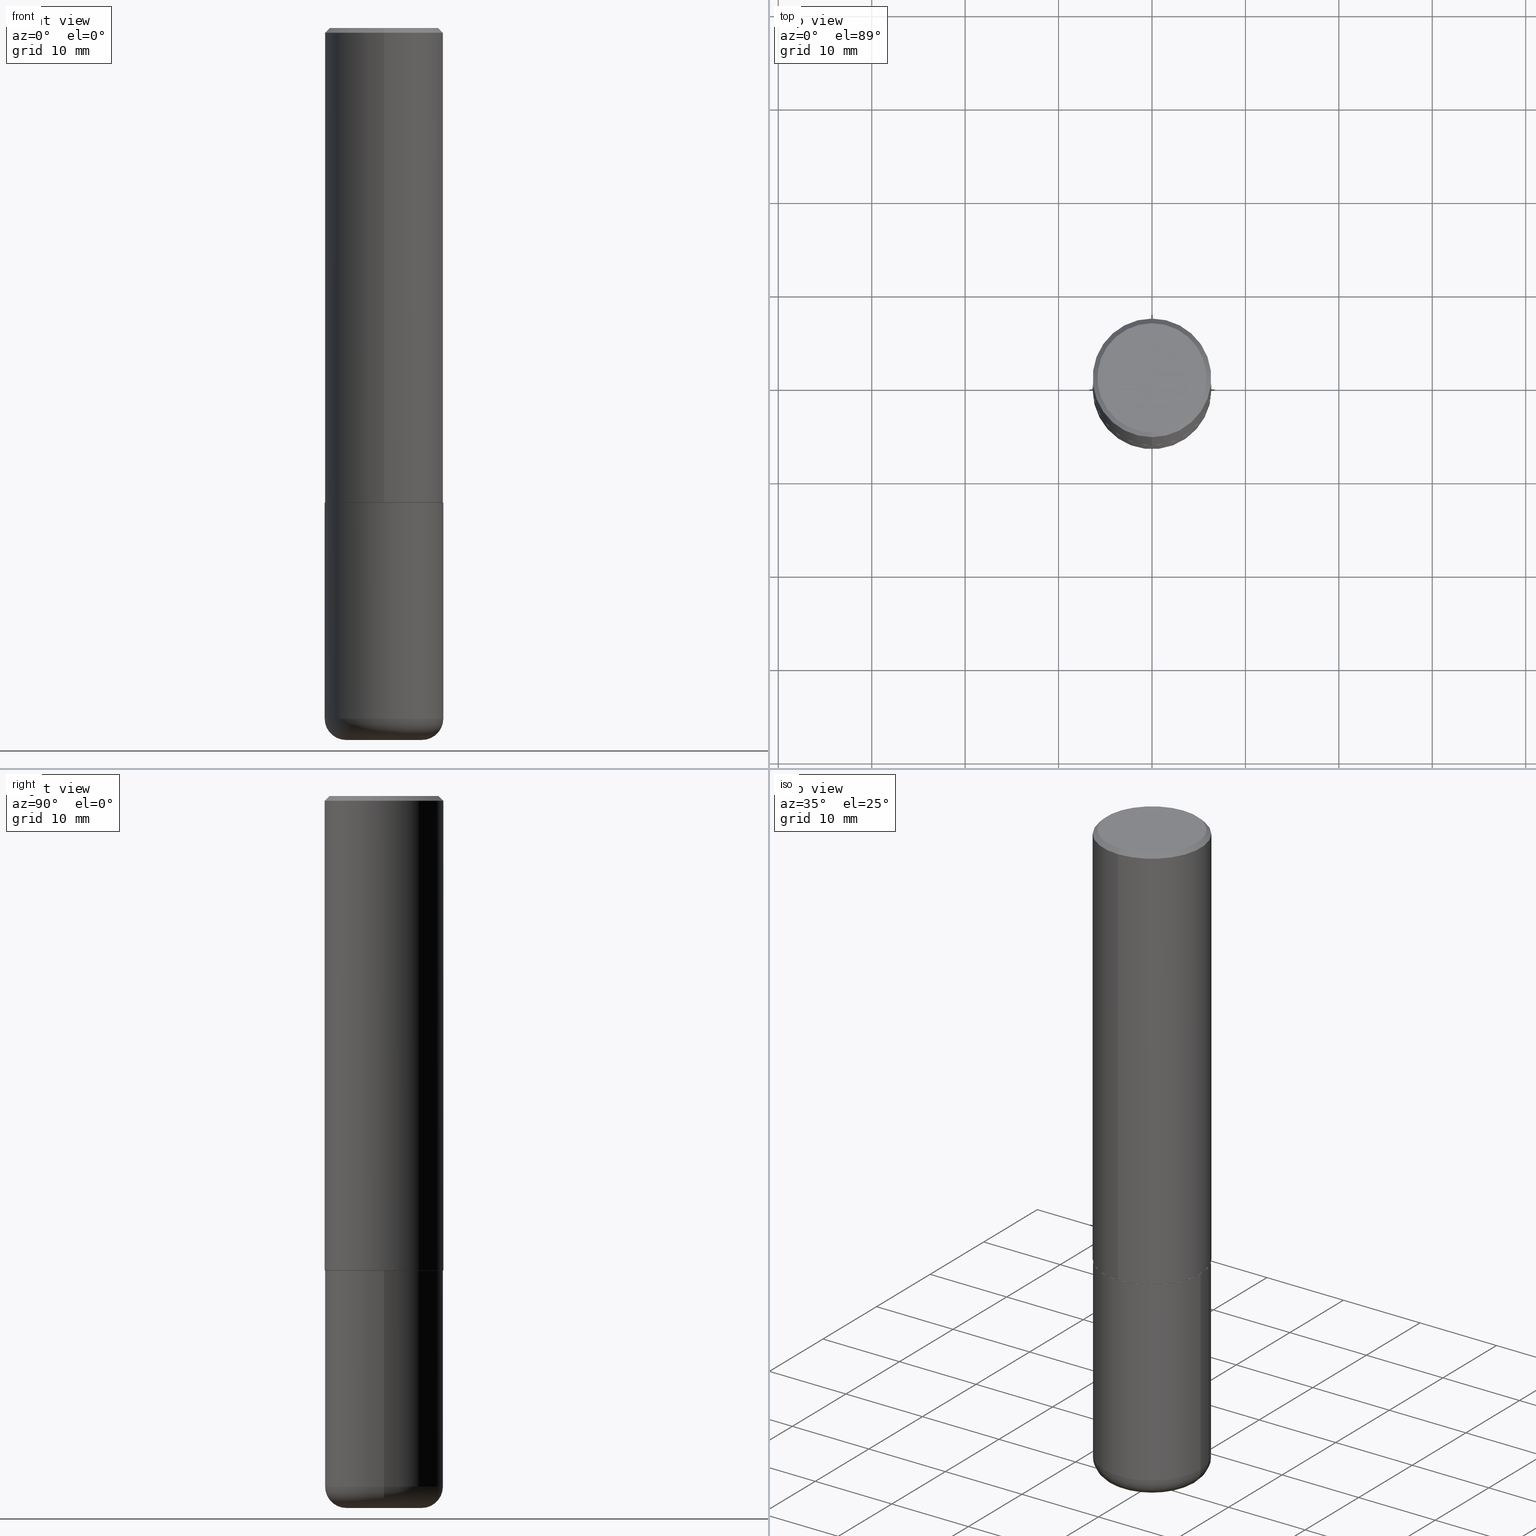
[diagram: canonical four-view strip — front | top / right | iso, engineering-drawing reading convention]
A machine part, canonical four-view strip (front | top / right | iso — engineering-drawing reading convention). The complete STEP part file that produces these views, byte-faithful:
ISO-10303-21;
HEADER;
FILE_DESCRIPTION (( 'STEP AP203' ),
    '1' );
FILE_NAME ('36707.STEP',
    '2024-03-01T17:23:09',
    ( '' ),
    ( '' ),
    'SwSTEP 2.0',
    'SolidWorks 2023',
    '' );
FILE_SCHEMA (( 'CONFIG_CONTROL_DESIGN' ));
ENDSEC;

DATA;
#1 = AXIS2_PLACEMENT_3D ( 'NONE', #129, #260, #95 ) ;
#2 = CARTESIAN_POINT ( 'NONE',  ( 0.000000000000000000, 0.000000000000000000, 0.000000000000000000 ) ) ;
#3 = FACE_OUTER_BOUND ( 'NONE', #269, .T. ) ;
#4 = CARTESIAN_POINT ( 'NONE',  ( -6.999288131327388275E-45, 1.000177822699752408E-30, 2.863382567778991632E-16 ) ) ;
#5 = VERTEX_POINT ( 'NONE', #296 ) ;
#6 = CARTESIAN_POINT ( 'NONE',  ( 7.336406418555409790E-29, -1.047444401652943635E-14, -3.000000000000000444 ) ) ;
#7 = EDGE_CURVE ( 'NONE', #244, #306, #113, .T. ) ;
#8 = CARTESIAN_POINT ( 'NONE',  ( 7.116314225998749245E-29, -1.016021069603355467E-14, -2.910000000000000586 ) ) ;
#9 = ADVANCED_FACE ( 'NONE', ( #3 ), #122, .F. ) ;
#10 = ORIENTED_EDGE ( 'NONE', *, *, #207, .T. ) ;
#11 = CARTESIAN_POINT ( 'NONE',  ( 1.606081415867839095E-15, 0.2299999999999997047, -6.602194994861444855E-16 ) ) ;
#12 = ORIENTED_EDGE ( 'NONE', *, *, #275, .F. ) ;
#13 = DIRECTION ( 'NONE',  ( -2.444412496635560889E-29, 3.492994034239543658E-15, 1.000000000000000000 ) ) ;
#14 = CIRCLE ( 'NONE', #246, 0.2500000000000000000 ) ;
#15 = DATE_AND_TIME ( #281, #188 ) ;
#16 = CARTESIAN_POINT ( 'NONE',  ( 7.116314225998749245E-29, -1.016021069603355467E-14, -2.910000000000000586 ) ) ;
#17 = PERSON_AND_ORGANIZATION ( #49, #137 ) ;
#18 = TOROIDAL_SURFACE ( 'NONE', #380, 0.1600000000000000033, 0.08999999999999994116 ) ;
#19 = APPROVAL_PERSON_ORGANIZATION ( #17, #278, #245 ) ;
#20 = CC_DESIGN_DATE_AND_TIME_ASSIGNMENT ( #310, #371, ( #351 ) ) ;
#21 = COORDINATED_UNIVERSAL_TIME_OFFSET ( 5, 0, .BEHIND. ) ;
#22 = EDGE_CURVE ( 'NONE', #223, #192, #194, .T. ) ;
#23 = CONICAL_SURFACE ( 'NONE', #349, 0.2500000000000000000, 0.7853981633974472798 ) ;
#24 = FACE_OUTER_BOUND ( 'NONE', #165, .T. ) ;
#25 = DIRECTION ( 'NONE',  ( -2.444412496635560889E-29, 3.492994034239543658E-15, 1.000000000000000000 ) ) ;
#26 = ORIENTED_EDGE ( 'NONE', *, *, #7, .T. ) ;
#27 = CARTESIAN_POINT ( 'NONE',  ( 0.000000000000000000, 0.000000000000000000, 0.000000000000000000 ) ) ;
#28 = ORIENTED_EDGE ( 'NONE', *, *, #248, .T. ) ;
#29 = VECTOR ( 'NONE', #163, 39.37007874015748143 ) ;
#30 = CC_DESIGN_PERSON_AND_ORGANIZATION_ASSIGNMENT ( #387, #412, ( #120 ) ) ;
#31 = DIRECTION ( 'NONE',  ( -6.982962677686266711E-15, -1.000000000000000000, 3.491481338843145583E-15 ) ) ;
#32 = CARTESIAN_POINT ( 'NONE',  ( -1.715124499442882299E-15, -0.2500000000000000555, -0.01999999999999918163 ) ) ;
#33 = CARTESIAN_POINT ( 'NONE',  ( 4.888824993271135161E-31, -6.985988068479105855E-17, -0.02000000000000005593 ) ) ;
#34 = FACE_OUTER_BOUND ( 'NONE', #413, .T. ) ;
#35 = PRODUCT_DEFINITION_SHAPE ( 'NONE', 'NONE',  #351 ) ;
#36 = LINE ( 'NONE', #302, #264 ) ;
#37 = AXIS2_PLACEMENT_3D ( 'NONE', #93, #225, #356 ) ;
#38 = DIRECTION ( 'NONE',  ( -1.000000000000000000, 6.982962677686265922E-15, -4.876176775795935793E-29 ) ) ;
#39 = EDGE_LOOP ( 'NONE', ( #169, #347, #247, #69 ) ) ;
#40 = CARTESIAN_POINT ( 'NONE',  ( 4.888824993271122339E-29, -6.985988068479088105E-15, -2.000000000000000444 ) ) ;
#41 = APPLICATION_CONTEXT ( 'configuration controlled 3d designs of mechanical parts and assemblies' ) ;
#42 = APPROVAL ( #341, 'UNSPECIFIED' ) ;
#43 = VECTOR ( 'NONE', #328, 39.37007874015748143 ) ;
#44 = COORDINATED_UNIVERSAL_TIME_OFFSET ( 5, 0, .BEHIND. ) ;
#45 = APPROVAL_DATE_TIME ( #367, #42 ) ;
#46 = ADVANCED_FACE ( 'NONE', ( #287 ), #18, .T. ) ;
#47 = ORIENTED_EDGE ( 'NONE', *, *, #90, .F. ) ;
#48 = TOROIDAL_SURFACE ( 'NONE', #88, 0.1600000000000000033, 0.08999999999999994116 ) ;
#49 = PERSON ( 'UNSPECIFIED', 'UNSPECIFIED', 'UNSPECIFIED', ('UNSPECIFIED'), ('UNSPECIFIED'), ('UNSPECIFIED') ) ;
#50 = PERSON_AND_ORGANIZATION ( #49, #137 ) ;
#51 = EDGE_CURVE ( 'NONE', #352, #192, #198, .T. ) ;
#52 = DIRECTION ( 'NONE',  ( -2.444412496635560889E-29, 3.492994034239543658E-15, 1.000000000000000000 ) ) ;
#53 = CIRCLE ( 'NONE', #293, 0.2500000000000002776 ) ;
#54 = CIRCLE ( 'NONE', #368, 0.2299999999999997047 ) ;
#55 = CARTESIAN_POINT ( 'NONE',  ( 0.000000000000000000, 0.000000000000000000, 0.000000000000000000 ) ) ;
#56 = EDGE_LOOP ( 'NONE', ( #204, #336 ) ) ;
#57 = DIRECTION ( 'NONE',  ( 1.000000000000000000, -6.982962677686266711E-15, 4.876176775795935793E-29 ) ) ;
#58 = VERTEX_POINT ( 'NONE', #156 ) ;
#59 = DIRECTION ( 'NONE',  ( -2.444412496635560889E-29, 3.492994034239543658E-15, 1.000000000000000000 ) ) ;
#60 = ADVANCED_BREP_SHAPE_REPRESENTATION ( '36707', ( #415, #274, #210 ), #332 ) ;
#61 = ORIENTED_EDGE ( 'NONE', *, *, #211, .T. ) ;
#62 = CIRCLE ( 'NONE', #172, 0.2500000000000000000 ) ;
#63 = DIRECTION ( 'NONE',  ( 1.000000000000000000, -6.982962677686266711E-15, 0.000000000000000000 ) ) ;
#64 = DIRECTION ( 'NONE',  ( -2.444412496635560889E-29, 3.492994034239543658E-15, 1.000000000000000000 ) ) ;
#65 = ADVANCED_FACE ( 'NONE', ( #262 ), #177, .T. ) ;
#66 = CARTESIAN_POINT ( 'NONE',  ( 4.888824993271135161E-31, -6.985988068479105855E-17, -0.02000000000000005593 ) ) ;
#67 = FACE_OUTER_BOUND ( 'NONE', #284, .T. ) ;
#68 = COORDINATED_UNIVERSAL_TIME_OFFSET ( 5, 0, .BEHIND. ) ;
#69 = ORIENTED_EDGE ( 'NONE', *, *, #248, .F. ) ;
#70 = DIRECTION ( 'NONE',  ( -6.982962677686265922E-15, -1.000000000000000000, 3.500180241882337261E-15 ) ) ;
#71 = CLOSED_SHELL ( 'NONE', ( #65, #257, #187, #299, #164, #104, #9, #386 ) ) ;
#72 = CC_DESIGN_APPROVAL ( #278, ( #144 ) ) ;
#73 = ORIENTED_EDGE ( 'NONE', *, *, #243, .T. ) ;
#74 = CARTESIAN_POINT ( 'NONE',  ( 1.745740669421566875E-15, 0.2499999999999999167, -0.02000000000000093023 ) ) ;
#75 = ORIENTED_EDGE ( 'NONE', *, *, #22, .T. ) ;
#76 = DIRECTION ( 'NONE',  ( -2.445468806185136597E-29, 3.491481338843145583E-15, 1.000000000000000000 ) ) ;
#77 = AXIS2_PLACEMENT_3D ( 'NONE', #33, #52, #320 ) ;
#78 = MECHANICAL_CONTEXT ( 'NONE', #41, 'mechanical' ) ;
#79 = EDGE_LOOP ( 'NONE', ( #142, #217, #327, #343 ) ) ;
#80 = CIRCLE ( 'NONE', #263, 0.2299999999999997047 ) ;
#81 = ORIENTED_EDGE ( 'NONE', *, *, #237, .F. ) ;
#82 = CALENDAR_DATE ( 2024, 1, 3 ) ;
#83 = ORIENTED_EDGE ( 'NONE', *, *, #179, .T. ) ;
#84 = FACE_OUTER_BOUND ( 'NONE', #79, .T. ) ;
#85 = DESIGN_CONTEXT ( 'detailed design', #268, 'design' ) ;
#86 = DIRECTION ( 'NONE',  ( -2.444412496635560889E-29, 3.492994034239543658E-15, 1.000000000000000000 ) ) ;
#87 = CIRCLE ( 'NONE', #171, 0.2500000000000002776 ) ;
#88 = AXIS2_PLACEMENT_3D ( 'NONE', #16, #394, #99 ) ;
#89 = DIRECTION ( 'NONE',  ( -2.445468806185136597E-29, 3.491481338843145583E-15, 1.000000000000000000 ) ) ;
#90 = EDGE_CURVE ( 'NONE', #352, #362, #53, .T. ) ;
#91 = CARTESIAN_POINT ( 'NONE',  ( -0.1600000000000000033, -9.023342318817394938E-15, -2.910000000000000586 ) ) ;
#92 = DIRECTION ( 'NONE',  ( -6.982962677686266711E-15, -1.000000000000000000, 3.492994034239544053E-15 ) ) ;
#93 = CARTESIAN_POINT ( 'NONE',  ( 4.888824993271122339E-29, -6.985988068479088105E-15, -2.000000000000000444 ) ) ;
#94 = DIRECTION ( 'NONE',  ( 5.024295867788576727E-15, 0.7071067811866224018, 0.7071067811864726327 ) ) ;
#95 = DIRECTION ( 'NONE',  ( 1.000000000000000000, -6.982962677686266711E-15, 0.000000000000000000 ) ) ;
#96 = AXIS2_PLACEMENT_3D ( 'NONE', #197, #89, #57 ) ;
#97 = EDGE_CURVE ( 'NONE', #58, #311, #136, .T. ) ;
#98 = CARTESIAN_POINT ( 'NONE',  ( -1.745740669421519543E-15, -0.2500000000000072164, -1.998999999999999444 ) ) ;
#99 = DIRECTION ( 'NONE',  ( 1.000000000000000000, -6.982962677686265133E-15, 4.883557194083112340E-29 ) ) ;
#100 = DIRECTION ( 'NONE',  ( -6.982962677686265133E-15, -1.000000000000000000, 3.291383124896702687E-15 ) ) ;
#101 = ORIENTED_EDGE ( 'NONE', *, *, #307, .F. ) ;
#102 = CARTESIAN_POINT ( 'NONE',  ( 7.336406418555409790E-29, -1.047444401652943635E-14, -3.000000000000000444 ) ) ;
#103 = AXIS2_PLACEMENT_3D ( 'NONE', #133, #124, #100 ) ;
#104 = ADVANCED_FACE ( 'NONE', ( #67 ), #411, .T. ) ;
#105 = DIRECTION ( 'NONE',  ( 2.444412496635560609E-29, -3.492994034239543658E-15, -1.000000000000000000 ) ) ;
#106 = ADVANCED_FACE ( 'NONE', ( #34 ), #361, .F. ) ;
#107 = APPROVAL_DATE_TIME ( #345, #278 ) ;
#108 = CIRCLE ( 'NONE', #348, 0.2500000000000000555 ) ;
#109 = AXIS2_PLACEMENT_3D ( 'NONE', #11, #105, #398 ) ;
#110 = ORIENTED_EDGE ( 'NONE', *, *, #7, .F. ) ;
#111 = CALENDAR_DATE ( 2024, 1, 3 ) ;
#112 = COORDINATED_UNIVERSAL_TIME_OFFSET ( 5, 0, .BEHIND. ) ;
#113 = CIRCLE ( 'NONE', #253, 0.08999999999999992728 ) ;
#114 = UNCERTAINTY_MEASURE_WITH_UNIT (LENGTH_MEASURE( 1.000000000000000082E-05 ), #175, 'distance_accuracy_value', 'NONE');
#115 = ORIENTED_EDGE ( 'NONE', *, *, #359, .F. ) ;
#116 = DIRECTION ( 'NONE',  ( -2.444412496635560889E-29, 3.492994034239543658E-15, 1.000000000000000000 ) ) ;
#117 = EDGE_CURVE ( 'NONE', #362, #409, #298, .T. ) ;
#118 = DIRECTION ( 'NONE',  ( -6.982962677686266711E-15, -1.000000000000000000, 3.492994034239544053E-15 ) ) ;
#119 = ORIENTED_EDGE ( 'NONE', *, *, #141, .F. ) ;
#120 = SECURITY_CLASSIFICATION ( '', '', #309 ) ;
#121 = DIRECTION ( 'NONE',  ( -6.982962677686265922E-15, -1.000000000000000000, 3.492994034239542869E-15 ) ) ;
#122 = PLANE ( 'NONE',  #37 ) ;
#123 = CARTESIAN_POINT ( 'NONE',  ( 0.1600000000000000033, -1.127748472446335797E-14, -2.910000000000000586 ) ) ;
#124 = DIRECTION ( 'NONE',  ( -2.444412496635560889E-29, 3.492994034239543658E-15, 1.000000000000000000 ) ) ;
#125 = CARTESIAN_POINT ( 'NONE',  ( 0.1600000000000000033, -1.159171804495923808E-14, -3.000000000000000444 ) ) ;
#126 = AXIS2_PLACEMENT_3D ( 'NONE', #224, #59, #288 ) ;
#127 = CC_DESIGN_APPROVAL ( #226, ( #120 ) ) ;
#128 = FACE_OUTER_BOUND ( 'NONE', #56, .T. ) ;
#129 = CARTESIAN_POINT ( 'NONE',  ( 4.890937612370273754E-29, -6.982962677686291954E-15, -2.000000000000000444 ) ) ;
#130 = DIRECTION ( 'NONE',  ( -2.444412496635560889E-29, 3.492994034239543658E-15, 1.000000000000000000 ) ) ;
#131 = PERSON_AND_ORGANIZATION ( #49, #137 ) ;
#132 = DIRECTION ( 'NONE',  ( 6.982962677686265922E-15, 1.000000000000000000, -3.500180241882337261E-15 ) ) ;
#133 = CARTESIAN_POINT ( 'NONE',  ( 4.888824993271122339E-29, -6.985988068479088105E-15, -2.000000000000000444 ) ) ;
#134 = ORIENTED_EDGE ( 'NONE', *, *, #283, .F. ) ;
#135 = CARTESIAN_POINT ( 'NONE',  ( -1.738757706743831360E-15, -0.2490000000000069935, -1.999999999999999334 ) ) ;
#136 = CIRCLE ( 'NONE', #1, 0.2500000000000000000 ) ;
#137 = ORGANIZATION ( 'UNSPECIFIED', 'UNSPECIFIED', '' ) ;
#138 = ORIENTED_EDGE ( 'NONE', *, *, #183, .F. ) ;
#139 = PERSON_AND_ORGANIZATION ( #49, #137 ) ;
#140 = PERSON_AND_ORGANIZATION ( #49, #137 ) ;
#141 = EDGE_CURVE ( 'NONE', #181, #5, #186, .T. ) ;
#142 = ORIENTED_EDGE ( 'NONE', *, *, #237, .T. ) ;
#143 = VECTOR ( 'NONE', #94, 39.37007874015748143 ) ;
#144 = PRODUCT_DEFINITION_FORMATION_WITH_SPECIFIED_SOURCE ( 'ANY', '', #393, .NOT_KNOWN. ) ;
#145 = DIRECTION ( 'NONE',  ( -4.851104656540958753E-15, -0.7071067811865492381, -0.7071067811865457964 ) ) ;
#146 = CYLINDRICAL_SURFACE ( 'NONE', #159, 0.2500000000000001110 ) ;
#147 = DIRECTION ( 'NONE',  ( 1.000000000000000000, -6.982962677686269077E-15, 0.000000000000000000 ) ) ;
#148 = EDGE_LOOP ( 'NONE', ( #153, #383, #47, #184 ) ) ;
#149 = DIRECTION ( 'NONE',  ( 1.000000000000000000, -6.982962677686273810E-15, 0.000000000000000000 ) ) ;
#150 = ORIENTED_EDGE ( 'NONE', *, *, #141, .T. ) ;
#151 = AXIS2_PLACEMENT_3D ( 'NONE', #360, #201, #38 ) ;
#152 = DIRECTION ( 'NONE',  ( 6.982962677686265922E-15, 1.000000000000000000, -3.500180241882337261E-15 ) ) ;
#153 = ORIENTED_EDGE ( 'NONE', *, *, #275, .T. ) ;
#154 = DIRECTION ( 'NONE',  ( 1.000000000000000000, -6.982962677686266711E-15, 4.876176775795935793E-29 ) ) ;
#155 = CC_DESIGN_DATE_AND_TIME_ASSIGNMENT ( #203, #333, ( #120 ) ) ;
#156 = CARTESIAN_POINT ( 'NONE',  ( -0.2500000000000000000, -6.795229847459672846E-15, -2.000000000000000444 ) ) ;
#157 = DIRECTION ( 'NONE',  ( -1.000000000000000000, 6.982962677686265922E-15, -4.876176775795935793E-29 ) ) ;
#158 = EDGE_CURVE ( 'NONE', #206, #362, #261, .T. ) ;
#159 = AXIS2_PLACEMENT_3D ( 'NONE', #27, #384, #92 ) ;
#160 = CALENDAR_DATE ( 2024, 1, 3 ) ;
#161 = AXIS2_PLACEMENT_3D ( 'NONE', #102, #76, #391 ) ;
#162 = CARTESIAN_POINT ( 'NONE',  ( -6.999288131327388275E-45, 1.000177822699752408E-30, 2.863382567778991632E-16 ) ) ;
#163 = DIRECTION ( 'NONE',  ( -2.444412496635561170E-29, 3.492994034239543658E-15, 1.000000000000000000 ) ) ;
#164 = ADVANCED_FACE ( 'NONE', ( #350 ), #218, .T. ) ;
#165 = EDGE_LOOP ( 'NONE', ( #290, #255, #214, #372 ) ) ;
#166 = DIRECTION ( 'NONE',  ( 2.438088387897960049E-29, -3.491481338843145188E-15, -1.000000000000000000 ) ) ;
#167 = DIRECTION ( 'NONE',  ( -2.445468806185136597E-29, 3.491481338843145583E-15, 1.000000000000000000 ) ) ;
#168 = CARTESIAN_POINT ( 'NONE',  ( -0.2500000000000000000, -8.383853856633304202E-15, -2.910000000000000586 ) ) ;
#169 = ORIENTED_EDGE ( 'NONE', *, *, #117, .F. ) ;
#170 = PLANE ( 'NONE',  #406 ) ;
#171 = AXIS2_PLACEMENT_3D ( 'NONE', #222, #25, #323 ) ;
#172 = AXIS2_PLACEMENT_3D ( 'NONE', #233, #13, #70 ) ;
#173 = ADVANCED_FACE ( 'NONE', ( #379 ), #295, .T. ) ;
#174 = PERSON_AND_ORGANIZATION_ROLE ( 'design_supplier' ) ;
#175 =( CONVERSION_BASED_UNIT ( 'INCH', #342 ) LENGTH_UNIT ( ) NAMED_UNIT ( #205 ) );
#176 =( NAMED_UNIT ( * ) SI_UNIT ( $, .STERADIAN. ) SOLID_ANGLE_UNIT ( ) );
#177 = CONICAL_SURFACE ( 'NONE', #103, 0.2489999999999999991, 0.7853981633975507526 ) ;
#178 = ORIENTED_EDGE ( 'NONE', *, *, #316, .T. ) ;
#179 = EDGE_CURVE ( 'NONE', #181, #244, #300, .T. ) ;
#180 = APPLICATION_PROTOCOL_DEFINITION ( 'international standard', 'config_control_design', 1994, #268 ) ;
#181 = VERTEX_POINT ( 'NONE', #125 ) ;
#182 = PERSON_AND_ORGANIZATION_ROLE ( 'creator' ) ;
#183 = EDGE_CURVE ( 'NONE', #223, #221, #80, .T. ) ;
#184 = ORIENTED_EDGE ( 'NONE', *, *, #373, .F. ) ;
#185 = DIRECTION ( 'NONE',  ( -2.445468806185136597E-29, 3.491481338843145583E-15, 1.000000000000000000 ) ) ;
#186 = CIRCLE ( 'NONE', #344, 0.08999999999999992728 ) ;
#187 = ADVANCED_FACE ( 'NONE', ( #388 ), #209, .T. ) ;
#188 = LOCAL_TIME ( 12, 23, 9.000000000000000000, #44 ) ;
#189 = DIRECTION ( 'NONE',  ( -2.445468806185136597E-29, 3.491481338843145583E-15, 1.000000000000000000 ) ) ;
#190 = EDGE_LOOP ( 'NONE', ( #83, #26, #81, #119 ) ) ;
#191 = LINE ( 'NONE', #346, #43 ) ;
#192 = VERTEX_POINT ( 'NONE', #357 ) ;
#193 = LINE ( 'NONE', #74, #331 ) ;
#194 = LINE ( 'NONE', #32, #312 ) ;
#195 = LOCAL_TIME ( 12, 23, 9.000000000000000000, #68 ) ;
#196 = CC_DESIGN_PERSON_AND_ORGANIZATION_ASSIGNMENT ( #239, #174, ( #144 ) ) ;
#197 = CARTESIAN_POINT ( 'NONE',  ( 0.000000000000000000, 0.000000000000000000, 0.000000000000000000 ) ) ;
#198 = LINE ( 'NONE', #305, #326 ) ;
#199 = CARTESIAN_POINT ( 'NONE',  ( 1.776356839400251254E-15, 0.2500000000000001110, -8.732485085598864076E-16 ) ) ;
#200 = DIRECTION ( 'NONE',  ( -6.982962677686265133E-15, -1.000000000000000000, 3.291383124896702687E-15 ) ) ;
#201 = DIRECTION ( 'NONE',  ( 2.438088387897960049E-29, -3.491481338843145188E-15, -1.000000000000000000 ) ) ;
#202 = CIRCLE ( 'NONE', #392, 0.2489999999999999991 ) ;
#203 = DATE_AND_TIME ( #160, #195 ) ;
#204 = ORIENTED_EDGE ( 'NONE', *, *, #179, .F. ) ;
#205 = DIMENSIONAL_EXPONENTS ( 1.000000000000000000, 0.000000000000000000, 0.000000000000000000, 0.000000000000000000, 0.000000000000000000, 0.000000000000000000, 0.000000000000000000 ) ;
#206 = VERTEX_POINT ( 'NONE', #325 ) ;
#207 = EDGE_CURVE ( 'NONE', #311, #58, #14, .T. ) ;
#208 = FACE_OUTER_BOUND ( 'NONE', #190, .T. ) ;
#209 = CONICAL_SURFACE ( 'NONE', #285, 0.2500000000000000000, 0.7853981633974472798 ) ;
#210 = AXIS2_PLACEMENT_3D ( 'NONE', #282, #408, #315 ) ;
#211 = EDGE_CURVE ( 'NONE', #306, #5, #108, .T. ) ;
#212 = PERSON_AND_ORGANIZATION_ROLE ( 'design_owner' ) ;
#213 = AXIS2_PLACEMENT_3D ( 'NONE', #2, #355, #154 ) ;
#214 = ORIENTED_EDGE ( 'NONE', *, *, #316, .F. ) ;
#215 = CALENDAR_DATE ( 2024, 1, 3 ) ;
#216 = CARTESIAN_POINT ( 'NONE',  ( -1.646519519465165981E-15, -0.2299999999999997047, 1.089726884652993329E-15 ) ) ;
#217 = ORIENTED_EDGE ( 'NONE', *, *, #359, .T. ) ;
#218 = CYLINDRICAL_SURFACE ( 'NONE', #399, 0.2500000000000001110 ) ;
#219 = CIRCLE ( 'NONE', #126, 0.2489999999999999991 ) ;
#220 = VECTOR ( 'NONE', #304, 39.37007874015748143 ) ;
#221 = VERTEX_POINT ( 'NONE', #252 ) ;
#222 = CARTESIAN_POINT ( 'NONE',  ( 4.886380580774486722E-29, -6.982495074444848074E-15, -1.999000000000000110 ) ) ;
#223 = VERTEX_POINT ( 'NONE', #216 ) ;
#224 = CARTESIAN_POINT ( 'NONE',  ( 4.888824993271122339E-29, -6.985988068479088105E-15, -2.000000000000000444 ) ) ;
#225 = DIRECTION ( 'NONE',  ( -2.444412496635560609E-29, 3.492994034239543658E-15, 1.000000000000000000 ) ) ;
#226 = APPROVAL ( #403, 'UNSPECIFIED' ) ;
#227 = DIRECTION ( 'NONE',  ( 2.444412496635560889E-29, -3.492994034239543658E-15, -1.000000000000000000 ) ) ;
#228 = CIRCLE ( 'NONE', #286, 0.2500000000000000555 ) ;
#229 = DIRECTION ( 'NONE',  ( -2.444412496635561170E-29, 3.492994034239543658E-15, 1.000000000000000000 ) ) ;
#230 = CARTESIAN_POINT ( 'NONE',  ( -1.738757706743831360E-15, -0.2490000000000069935, -1.999999999999999334 ) ) ;
#231 = EDGE_CURVE ( 'NONE', #362, #352, #87, .T. ) ;
#232 = CARTESIAN_POINT ( 'NONE',  ( 4.888824993271122339E-29, -6.985988068479088105E-15, -2.000000000000000444 ) ) ;
#233 = CARTESIAN_POINT ( 'NONE',  ( 4.888824993271135161E-31, -6.985988068479105855E-17, -0.02000000000000005593 ) ) ;
#234 = CARTESIAN_POINT ( 'NONE',  ( 4.886380580774486722E-29, -6.982495074444848074E-15, -1.999000000000000110 ) ) ;
#235 = ORIENTED_EDGE ( 'NONE', *, *, #373, .T. ) ;
#236 = CARTESIAN_POINT ( 'NONE',  ( 7.336406418555409790E-29, -1.047444401652943635E-14, -3.000000000000000444 ) ) ;
#237 = EDGE_CURVE ( 'NONE', #5, #306, #228, .T. ) ;
#238 = ORIENTED_EDGE ( 'NONE', *, *, #340, .T. ) ;
#239 = PERSON_AND_ORGANIZATION ( #49, #137 ) ;
#240 = APPROVAL_PERSON_ORGANIZATION ( #131, #226, #277 ) ;
#241 = ADVANCED_FACE ( 'NONE', ( #84 ), #289, .T. ) ;
#242 =( LENGTH_UNIT ( ) NAMED_UNIT ( * ) SI_UNIT ( $, .METRE. ) );
#243 = EDGE_CURVE ( 'NONE', #5, #311, #191, .T. ) ;
#244 = VERTEX_POINT ( 'NONE', #256 ) ;
#245 = APPROVAL_ROLE ( '' ) ;
#246 = AXIS2_PLACEMENT_3D ( 'NONE', #297, #353, #63 ) ;
#247 = ORIENTED_EDGE ( 'NONE', *, *, #51, .T. ) ;
#248 = EDGE_CURVE ( 'NONE', #409, #192, #405, .T. ) ;
#249 = ORIENTED_EDGE ( 'NONE', *, *, #97, .F. ) ;
#250 = CARTESIAN_POINT ( 'NONE',  ( 4.888824993271135161E-31, -6.985988068479105855E-17, -0.02000000000000005593 ) ) ;
#251 = EDGE_LOOP ( 'NONE', ( #115, #61, #73, #249 ) ) ;
#252 = CARTESIAN_POINT ( 'NONE',  ( 1.675911042644702985E-15, 0.2299999999999997047, -5.170503710971948053E-16 ) ) ;
#253 = AXIS2_PLACEMENT_3D ( 'NONE', #91, #354, #318 ) ;
#254 = LOCAL_TIME ( 12, 23, 9.000000000000000000, #375 ) ;
#255 = ORIENTED_EDGE ( 'NONE', *, *, #117, .T. ) ;
#256 = CARTESIAN_POINT ( 'NONE',  ( -0.1600000000000000033, -8.860714747973290413E-15, -3.000000000000000444 ) ) ;
#257 = ADVANCED_FACE ( 'NONE', ( #24 ), #146, .T. ) ;
#258 = ORIENTED_EDGE ( 'NONE', *, *, #158, .F. ) ;
#259 = DIRECTION ( 'NONE',  ( 1.000000000000000000, -6.982962677686259611E-15, 0.000000000000000000 ) ) ;
#260 = DIRECTION ( 'NONE',  ( -2.445468806185136597E-29, 3.491481338843145583E-15, 1.000000000000000000 ) ) ;
#261 = LINE ( 'NONE', #292, #143 ) ;
#262 = FACE_OUTER_BOUND ( 'NONE', #148, .T. ) ;
#263 = AXIS2_PLACEMENT_3D ( 'NONE', #4, #116, #121 ) ;
#264 = VECTOR ( 'NONE', #270, 39.37007874015748143 ) ;
#265 = CC_DESIGN_PERSON_AND_ORGANIZATION_ASSIGNMENT ( #404, #212, ( #393 ) ) ;
#266 = CARTESIAN_POINT ( 'NONE',  ( 1.776356839400276103E-15, 0.2499999999999933109, -1.999000000000000998 ) ) ;
#267 = DIRECTION ( 'NONE',  ( -6.982962677686265922E-15, -1.000000000000000000, 3.492994034239542869E-15 ) ) ;
#268 = APPLICATION_CONTEXT ( 'configuration controlled 3d designs of mechanical parts and assemblies' ) ;
#269 = EDGE_LOOP ( 'NONE', ( #12, #101 ) ) ;
#270 = DIRECTION ( 'NONE',  ( -2.445468806185136877E-29, 3.491481338843145188E-15, 1.000000000000000000 ) ) ;
#271 = AXIS2_PLACEMENT_3D ( 'NONE', #6, #189, #259 ) ;
#272 = EDGE_LOOP ( 'NONE', ( #334, #294, #370, #28 ) ) ;
#273 = FACE_OUTER_BOUND ( 'NONE', #400, .T. ) ;
#274 = MANIFOLD_SOLID_BREP ( 'Body-Move/Copy2[2]', #71 ) ;
#275 = EDGE_CURVE ( 'NONE', #410, #206, #219, .T. ) ;
#276 = PERSON_AND_ORGANIZATION_ROLE ( 'creator' ) ;
#277 = APPROVAL_ROLE ( '' ) ;
#278 = APPROVAL ( #279, 'UNSPECIFIED' ) ;
#279 = APPROVAL_STATUS ( 'not_yet_approved' ) ;
#280 = ORIENTED_EDGE ( 'NONE', *, *, #183, .T. ) ;
#281 = CALENDAR_DATE ( 2024, 1, 3 ) ;
#282 = CARTESIAN_POINT ( 'NONE',  ( 0.000000000000000000, 0.000000000000000000, 0.000000000000000000 ) ) ;
#283 = EDGE_CURVE ( 'NONE', #221, #409, #193, .T. ) ;
#284 = EDGE_LOOP ( 'NONE', ( #258, #338, #235, #385 ) ) ;
#285 = AXIS2_PLACEMENT_3D ( 'NONE', #250, #227, #152 ) ;
#286 = AXIS2_PLACEMENT_3D ( 'NONE', #416, #382, #147 ) ;
#287 = FACE_OUTER_BOUND ( 'NONE', #322, .T. ) ;
#288 = DIRECTION ( 'NONE',  ( -6.982962677686265133E-15, -1.000000000000000000, 3.291383124896702687E-15 ) ) ;
#289 = CYLINDRICAL_SURFACE ( 'NONE', #96, 0.2500000000000000000 ) ;
#290 = ORIENTED_EDGE ( 'NONE', *, *, #90, .T. ) ;
#291 = PRODUCT_RELATED_PRODUCT_CATEGORY ( 'detail', '', ( #393 ) ) ;
#292 = CARTESIAN_POINT ( 'NONE',  ( 1.769251412042697971E-15, 0.2489999999999930047, -2.000000000000000888 ) ) ;
#293 = AXIS2_PLACEMENT_3D ( 'NONE', #234, #363, #395 ) ;
#294 = ORIENTED_EDGE ( 'NONE', *, *, #414, .F. ) ;
#295 = CYLINDRICAL_SURFACE ( 'NONE', #213, 0.2500000000000000000 ) ;
#296 = CARTESIAN_POINT ( 'NONE',  ( 0.2500000000000000000, -1.190595136545512292E-14, -2.910000000000000586 ) ) ;
#297 = CARTESIAN_POINT ( 'NONE',  ( 4.890937612370273754E-29, -6.982962677686291954E-15, -2.000000000000000444 ) ) ;
#298 = LINE ( 'NONE', #199, #29 ) ;
#299 = ADVANCED_FACE ( 'NONE', ( #335 ), #23, .T. ) ;
#300 = CIRCLE ( 'NONE', #271, 0.1600000000000000033 ) ;
#301 = APPROVAL_PERSON_ORGANIZATION ( #140, #42, #313 ) ;
#302 = CARTESIAN_POINT ( 'NONE',  ( -0.2500000000000000000, 1.776356839400250465E-15, -1.229733772563726445E-29 ) ) ;
#303 = ORIENTED_EDGE ( 'NONE', *, *, #211, .F. ) ;
#304 = DIRECTION ( 'NONE',  ( -4.937700262165053702E-15, -0.7071067811866175168, 0.7071067811864775177 ) ) ;
#305 = CARTESIAN_POINT ( 'NONE',  ( -1.745740669421567467E-15, -0.2500000000000001110, 8.732485085598864076E-16 ) ) ;
#306 = VERTEX_POINT ( 'NONE', #168 ) ;
#307 = EDGE_CURVE ( 'NONE', #206, #410, #202, .T. ) ;
#308 = CARTESIAN_POINT ( 'NONE',  ( 1.745740669421566875E-15, 0.2499999999999999167, -0.02000000000000093023 ) ) ;
#309 = SECURITY_CLASSIFICATION_LEVEL ( 'unclassified' ) ;
#310 = DATE_AND_TIME ( #111, #376 ) ;
#311 = VERTEX_POINT ( 'NONE', #330 ) ;
#312 = VECTOR ( 'NONE', #145, 39.37007874015748143 ) ;
#313 = APPROVAL_ROLE ( '' ) ;
#314 = CC_DESIGN_SECURITY_CLASSIFICATION ( #120, ( #144 ) ) ;
#315 = DIRECTION ( 'NONE',  ( 1.000000000000000000, 0.000000000000000000, 0.000000000000000000 ) ) ;
#316 = EDGE_CURVE ( 'NONE', #192, #409, #62, .T. ) ;
#317 = APPLICATION_PROTOCOL_DEFINITION ( 'international standard', 'config_control_design', 1994, #41 ) ;
#318 = DIRECTION ( 'NONE',  ( -1.000000000000000000, 7.105427357601006592E-15, 0.000000000000000000 ) ) ;
#319 = CLOSED_SHELL ( 'NONE', ( #241, #397, #106, #173, #46, #364 ) ) ;
#320 = DIRECTION ( 'NONE',  ( -6.982962677686265922E-15, -1.000000000000000000, 3.500180241882337261E-15 ) ) ;
#321 = DIRECTION ( 'NONE',  ( 1.000000000000000000, -6.982962677686269077E-15, 0.000000000000000000 ) ) ;
#322 = EDGE_LOOP ( 'NONE', ( #110, #238, #150, #303 ) ) ;
#323 = DIRECTION ( 'NONE',  ( -6.982962677686265922E-15, -1.000000000000000000, 3.278217592397112312E-15 ) ) ;
#324 = EDGE_LOOP ( 'NONE', ( #138, #75, #178, #134 ) ) ;
#325 = CARTESIAN_POINT ( 'NONE',  ( 1.772804125721499264E-15, 0.2489999999999930047, -2.000000000000000888 ) ) ;
#326 = VECTOR ( 'NONE', #229, 39.37007874015748143 ) ;
#327 = ORIENTED_EDGE ( 'NONE', *, *, #207, .F. ) ;
#328 = DIRECTION ( 'NONE',  ( -2.445468806185136877E-29, 3.491481338843145188E-15, 1.000000000000000000 ) ) ;
#329 = DIRECTION ( 'NONE',  ( -6.982962677686265133E-15, -1.000000000000000000, 3.291383124896702687E-15 ) ) ;
#330 = CARTESIAN_POINT ( 'NONE',  ( 0.2500000000000000000, -8.728703347107858632E-15, -2.000000000000000444 ) ) ;
#331 = VECTOR ( 'NONE', #396, 39.37007874015748143 ) ;
#332 =( GEOMETRIC_REPRESENTATION_CONTEXT ( 3 ) GLOBAL_UNCERTAINTY_ASSIGNED_CONTEXT ( ( #114 ) ) GLOBAL_UNIT_ASSIGNED_CONTEXT ( ( #175, #369, #176 ) ) REPRESENTATION_CONTEXT ( 'NONE', 'WORKASPACE' ) );
#333 = DATE_TIME_ROLE ( 'classification_date' ) ;
#334 = ORIENTED_EDGE ( 'NONE', *, *, #22, .F. ) ;
#335 = FACE_OUTER_BOUND ( 'NONE', #272, .T. ) ;
#336 = ORIENTED_EDGE ( 'NONE', *, *, #340, .F. ) ;
#337 = LINE ( 'NONE', #135, #220 ) ;
#338 = ORIENTED_EDGE ( 'NONE', *, *, #307, .T. ) ;
#339 = CC_DESIGN_APPROVAL ( #42, ( #351 ) ) ;
#340 = EDGE_CURVE ( 'NONE', #244, #181, #365, .T. ) ;
#341 = APPROVAL_STATUS ( 'not_yet_approved' ) ;
#342 = LENGTH_MEASURE_WITH_UNIT ( LENGTH_MEASURE( 0.02539999999999999897 ), #242 );
#343 = ORIENTED_EDGE ( 'NONE', *, *, #243, .F. ) ;
#344 = AXIS2_PLACEMENT_3D ( 'NONE', #123, #31, #149 ) ;
#345 = DATE_AND_TIME ( #82, #254 ) ;
#346 = CARTESIAN_POINT ( 'NONE',  ( 0.2500000000000000000, -1.745740669421566678E-15, 1.219044193948983948E-29 ) ) ;
#347 = ORIENTED_EDGE ( 'NONE', *, *, #231, .T. ) ;
#348 = AXIS2_PLACEMENT_3D ( 'NONE', #417, #185, #321 ) ;
#349 = AXIS2_PLACEMENT_3D ( 'NONE', #66, #366, #132 ) ;
#350 = FACE_OUTER_BOUND ( 'NONE', #39, .T. ) ;
#351 = PRODUCT_DEFINITION ( 'UNKNOWN', '', #144, #85 ) ;
#352 = VERTEX_POINT ( 'NONE', #98 ) ;
#353 = DIRECTION ( 'NONE',  ( -2.445468806185136597E-29, 3.491481338843145583E-15, 1.000000000000000000 ) ) ;
#354 = DIRECTION ( 'NONE',  ( 7.105427357601001859E-15, 1.000000000000000000, -3.491481338843145583E-15 ) ) ;
#355 = DIRECTION ( 'NONE',  ( -2.445468806185136597E-29, 3.491481338843145583E-15, 1.000000000000000000 ) ) ;
#356 = DIRECTION ( 'NONE',  ( -6.982962677686265922E-15, -1.000000000000000000, 3.492994034239543658E-15 ) ) ;
#357 = CARTESIAN_POINT ( 'NONE',  ( -1.715124499442882299E-15, -0.2500000000000000555, -0.01999999999999918163 ) ) ;
#358 = DIRECTION ( 'NONE',  ( -2.444412496635560889E-29, 3.492994034239543658E-15, 1.000000000000000000 ) ) ;
#359 = EDGE_CURVE ( 'NONE', #306, #58, #36, .T. ) ;
#360 = CARTESIAN_POINT ( 'NONE',  ( 4.890937612370273754E-29, -6.982962677686291954E-15, -2.000000000000000444 ) ) ;
#361 = PLANE ( 'NONE',  #151 ) ;
#362 = VERTEX_POINT ( 'NONE', #266 ) ;
#363 = DIRECTION ( 'NONE',  ( -2.444412496635560889E-29, 3.492994034239543658E-15, 1.000000000000000000 ) ) ;
#364 = ADVANCED_FACE ( 'NONE', ( #128 ), #170, .T. ) ;
#365 = CIRCLE ( 'NONE', #161, 0.1600000000000000033 ) ;
#366 = DIRECTION ( 'NONE',  ( 2.444412496635560889E-29, -3.492994034239543658E-15, -1.000000000000000000 ) ) ;
#367 = DATE_AND_TIME ( #215, #381 ) ;
#368 = AXIS2_PLACEMENT_3D ( 'NONE', #162, #130, #267 ) ;
#369 =( NAMED_UNIT ( * ) PLANE_ANGLE_UNIT ( ) SI_UNIT ( $, .RADIAN. ) );
#370 = ORIENTED_EDGE ( 'NONE', *, *, #283, .T. ) ;
#371 = DATE_TIME_ROLE ( 'creation_date' ) ;
#372 = ORIENTED_EDGE ( 'NONE', *, *, #51, .F. ) ;
#373 = EDGE_CURVE ( 'NONE', #410, #352, #337, .T. ) ;
#374 = AXIS2_PLACEMENT_3D ( 'NONE', #232, #358, #329 ) ;
#375 = COORDINATED_UNIVERSAL_TIME_OFFSET ( 5, 0, .BEHIND. ) ;
#376 = LOCAL_TIME ( 12, 23, 9.000000000000000000, #112 ) ;
#377 = ORIENTED_EDGE ( 'NONE', *, *, #97, .T. ) ;
#378 = CC_DESIGN_PERSON_AND_ORGANIZATION_ASSIGNMENT ( #50, #276, ( #144 ) ) ;
#379 = FACE_OUTER_BOUND ( 'NONE', #251, .T. ) ;
#380 = AXIS2_PLACEMENT_3D ( 'NONE', #8, #167, #389 ) ;
#381 = LOCAL_TIME ( 12, 23, 9.000000000000000000, #21 ) ;
#382 = DIRECTION ( 'NONE',  ( -2.445468806185136597E-29, 3.491481338843145583E-15, 1.000000000000000000 ) ) ;
#383 = ORIENTED_EDGE ( 'NONE', *, *, #158, .T. ) ;
#384 = DIRECTION ( 'NONE',  ( -2.444412496635560889E-29, 3.492994034239543658E-15, 1.000000000000000000 ) ) ;
#385 = ORIENTED_EDGE ( 'NONE', *, *, #231, .F. ) ;
#386 = ADVANCED_FACE ( 'NONE', ( #273 ), #401, .F. ) ;
#387 = PERSON_AND_ORGANIZATION ( #49, #137 ) ;
#388 = FACE_OUTER_BOUND ( 'NONE', #324, .T. ) ;
#389 = DIRECTION ( 'NONE',  ( 1.000000000000000000, -6.982962677686265133E-15, 4.883557194083112340E-29 ) ) ;
#390 = CC_DESIGN_PERSON_AND_ORGANIZATION_ASSIGNMENT ( #139, #182, ( #351 ) ) ;
#391 = DIRECTION ( 'NONE',  ( 1.000000000000000000, -6.982962677686259611E-15, 0.000000000000000000 ) ) ;
#392 = AXIS2_PLACEMENT_3D ( 'NONE', #40, #64, #200 ) ;
#393 = PRODUCT ( '36707', '36707', '', ( #78 ) ) ;
#394 = DIRECTION ( 'NONE',  ( -2.445468806185136597E-29, 3.491481338843145583E-15, 1.000000000000000000 ) ) ;
#395 = DIRECTION ( 'NONE',  ( -6.982962677686265922E-15, -1.000000000000000000, 3.278217592397112312E-15 ) ) ;
#396 = DIRECTION ( 'NONE',  ( 4.937700262164542520E-15, 0.7071067811865443531, -0.7071067811865506814 ) ) ;
#397 = ADVANCED_FACE ( 'NONE', ( #208 ), #48, .T. ) ;
#398 = DIRECTION ( 'NONE',  ( 6.982962677686265922E-15, 1.000000000000000000, -3.492994034239543658E-15 ) ) ;
#399 = AXIS2_PLACEMENT_3D ( 'NONE', #55, #86, #118 ) ;
#400 = EDGE_LOOP ( 'NONE', ( #418, #280 ) ) ;
#401 = PLANE ( 'NONE',  #109 ) ;
#402 = SHAPE_DEFINITION_REPRESENTATION ( #35, #60 ) ;
#403 = APPROVAL_STATUS ( 'not_yet_approved' ) ;
#404 = PERSON_AND_ORGANIZATION ( #49, #137 ) ;
#405 = CIRCLE ( 'NONE', #77, 0.2500000000000000000 ) ;
#406 = AXIS2_PLACEMENT_3D ( 'NONE', #236, #166, #157 ) ;
#407 = APPROVAL_DATE_TIME ( #15, #226 ) ;
#408 = DIRECTION ( 'NONE',  ( 0.000000000000000000, 0.000000000000000000, 1.000000000000000000 ) ) ;
#409 = VERTEX_POINT ( 'NONE', #308 ) ;
#410 = VERTEX_POINT ( 'NONE', #230 ) ;
#411 = CONICAL_SURFACE ( 'NONE', #374, 0.2489999999999999991, 0.7853981633975507526 ) ;
#412 = PERSON_AND_ORGANIZATION_ROLE ( 'classification_officer' ) ;
#413 = EDGE_LOOP ( 'NONE', ( #10, #377 ) ) ;
#414 = EDGE_CURVE ( 'NONE', #221, #223, #54, .T. ) ;
#415 = MANIFOLD_SOLID_BREP ( 'Body-Move/Copy2[1]', #319 ) ;
#416 = CARTESIAN_POINT ( 'NONE',  ( 7.116314225998749245E-29, -1.016021069603355467E-14, -2.910000000000000586 ) ) ;
#417 = CARTESIAN_POINT ( 'NONE',  ( 7.116314225998749245E-29, -1.016021069603355467E-14, -2.910000000000000586 ) ) ;
#418 = ORIENTED_EDGE ( 'NONE', *, *, #414, .T. ) ;
ENDSEC;
END-ISO-10303-21;
